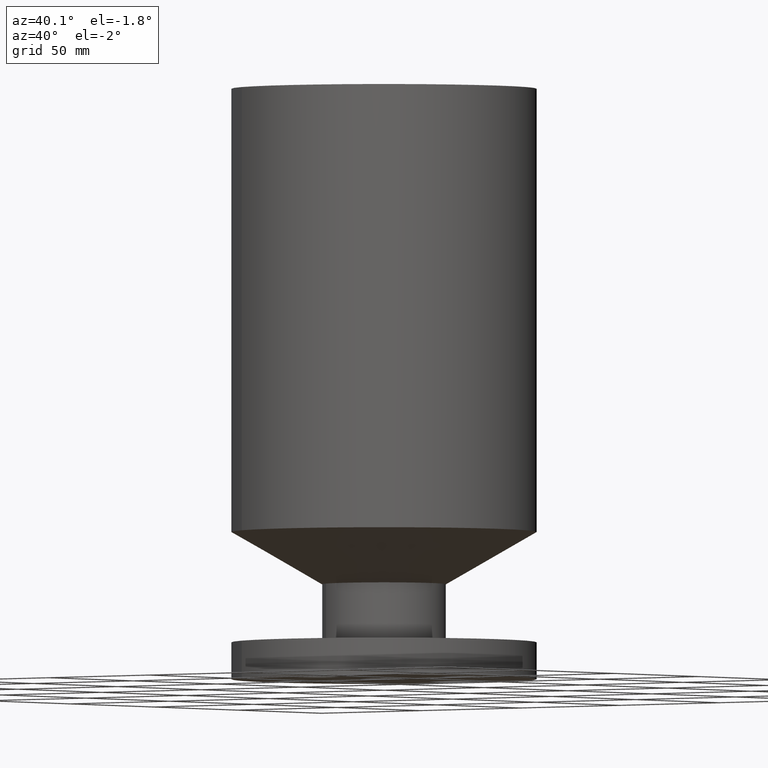
[diagram: clean part render]
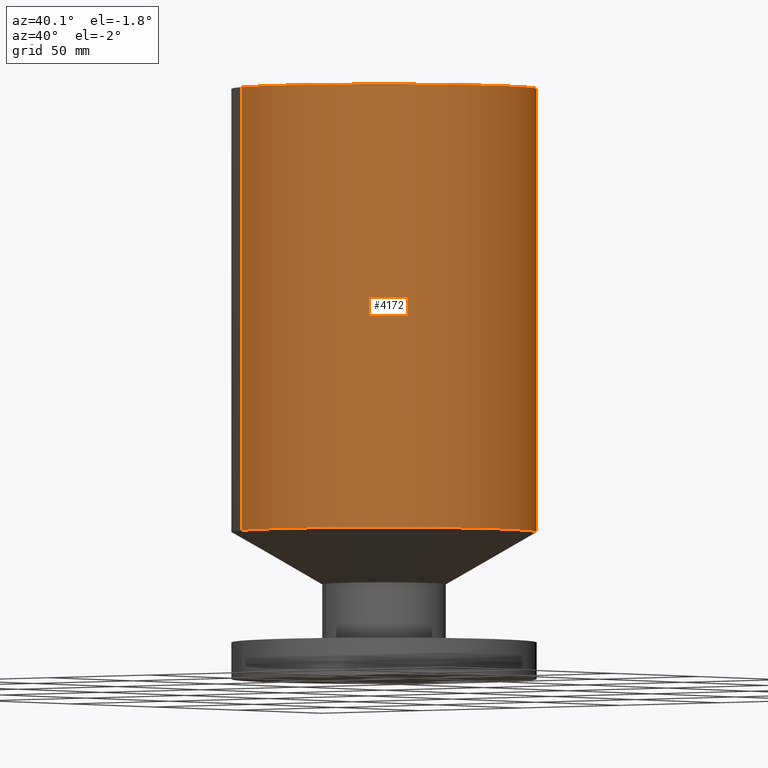
[diagram: same view with one face highlighted and labeled with its STEP entity id]
A machine part, auxiliary view. The second image highlights one B-rep face of the part: STEP entity #4172.
In plain terms, the highlighted cylindrical surface (partial cylindrical patch) has radius 58.674 mm, axis along (0, 0, -1).
Its self-contained STEP definition (entity closure, byte-faithful):
#213=AXIS2_PLACEMENT_3D('Cylinder Axis2P3D',#210,#211,#212) ;
#1275=AXIS2_PLACEMENT_3D('Circle Axis2P3D',#1273,#1274,$) ;
#4156=AXIS2_PLACEMENT_3D('Circle Axis2P3D',#4154,#4155,$) ;
#210=CARTESIAN_POINT('Axis2P3D Location',(0.,0.,4.43750000002)) ;
#1270=CARTESIAN_POINT('Vertex',(1.10747299418,2.02721571797,2.2284698688)) ;
#1273=CARTESIAN_POINT('Axis2P3D Location',(0.,0.,2.2284698688)) ;
#1277=CARTESIAN_POINT('Vertex',(-1.10747299418,-2.02721571797,2.2284698688)) ;
#4147=CARTESIAN_POINT('Line Origine',(1.10747299418,2.02721571797,5.58298493442)) ;
#4151=CARTESIAN_POINT('Vertex',(1.10747299418,2.02721571797,8.93750000004)) ;
#4154=CARTESIAN_POINT('Axis2P3D Location',(0.,0.,8.93750000004)) ;
#4158=CARTESIAN_POINT('Vertex',(-1.10747299418,-2.02721571797,8.93750000004)) ;
#4161=CARTESIAN_POINT('Line Origine',(-1.10747299418,-2.02721571797,5.58298493442)) ;
#211=DIRECTION('Axis2P3D Direction',(0.,0.,-0.0393700787402)) ;
#212=DIRECTION('Axis2P3D XDirection',(-0.0188750212049,-0.0345504945626,0.)) ;
#1274=DIRECTION('Axis2P3D Direction',(-0.,0.,0.0393700787402)) ;
#4148=DIRECTION('Vector Direction',(0.,0.,-0.0393700787402)) ;
#4155=DIRECTION('Axis2P3D Direction',(0.,0.,-0.0393700787402)) ;
#4162=DIRECTION('Vector Direction',(0.,0.,-0.0393700787402)) ;
#4149=VECTOR('Line Direction',#4148,0.0393700787402) ;
#4163=VECTOR('Line Direction',#4162,0.0393700787402) ;
#4167=ORIENTED_EDGE('',*,*,#1279,.F.) ;
#4168=ORIENTED_EDGE('',*,*,#4153,.T.) ;
#4169=ORIENTED_EDGE('',*,*,#4160,.T.) ;
#4170=ORIENTED_EDGE('',*,*,#4165,.F.) ;
#4172=ADVANCED_FACE('PartBody',(#4171),#214,.T.) ;
#1276=CIRCLE('generated circle',#1275,2.31000000001) ;
#4157=CIRCLE('generated circle',#4156,2.31000000001) ;
#214=CYLINDRICAL_SURFACE('generated cylinder',#213,2.31000000001) ;
#1279=EDGE_CURVE('',#1271,#1278,#1276,.F.) ;
#4153=EDGE_CURVE('',#1271,#4152,#4150,.F.) ;
#4160=EDGE_CURVE('',#4152,#4159,#4157,.T.) ;
#4165=EDGE_CURVE('',#1278,#4159,#4164,.F.) ;
#4166=EDGE_LOOP('',(#4167,#4168,#4169,#4170)) ;
#4171=FACE_OUTER_BOUND('',#4166,.T.) ;
#4150=LINE('Line',#4147,#4149) ;
#4164=LINE('Line',#4161,#4163) ;
#1271=VERTEX_POINT('',#1270) ;
#1278=VERTEX_POINT('',#1277) ;
#4152=VERTEX_POINT('',#4151) ;
#4159=VERTEX_POINT('',#4158) ;